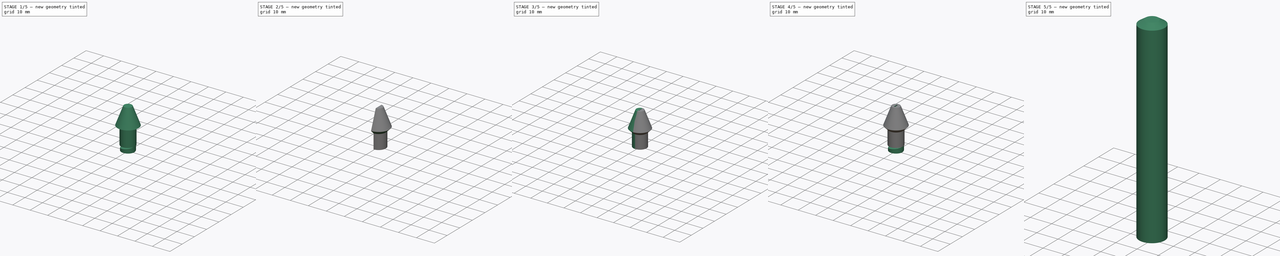
[diagram: build sequence overview — one tinted view per stage of 5, left to right]
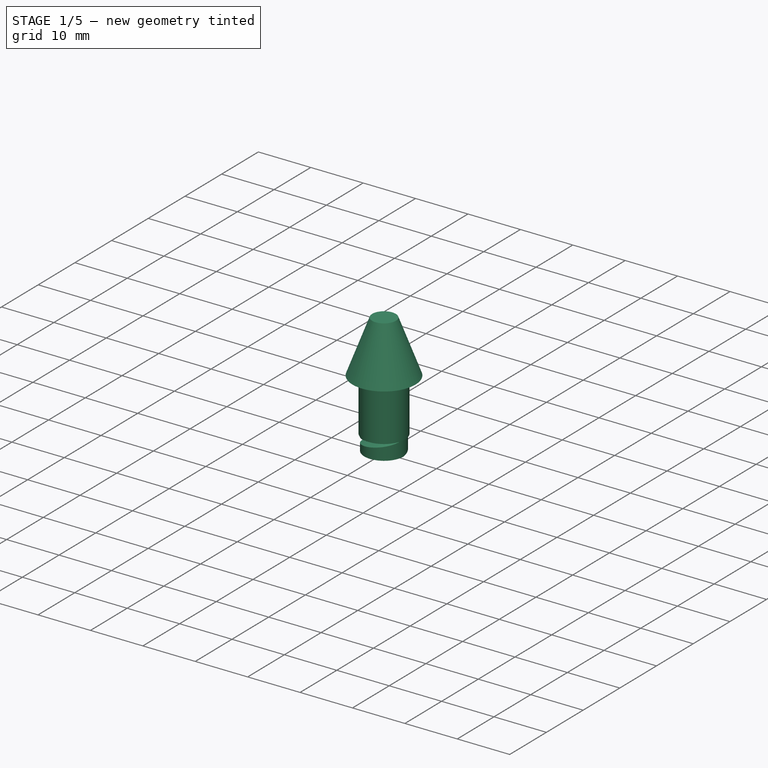
[diagram: stage 1 of 5 — iso view after this stage's code; geometry added in this stage tinted green]
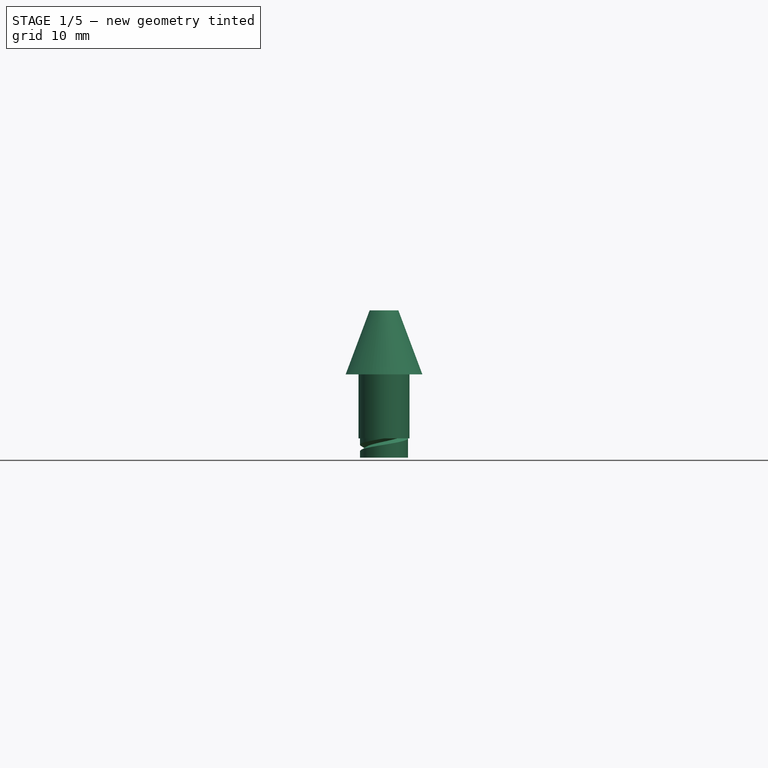
[diagram: stage 1 of 5 — front view after this stage's code; geometry added in this stage tinted green]
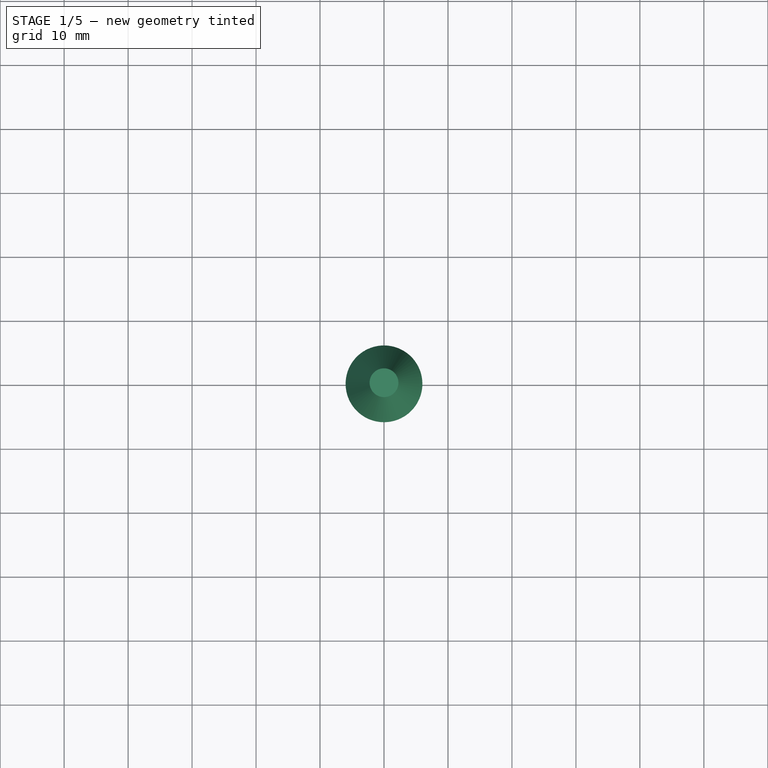
[diagram: stage 1 of 5 — top view after this stage's code; geometry added in this stage tinted green]
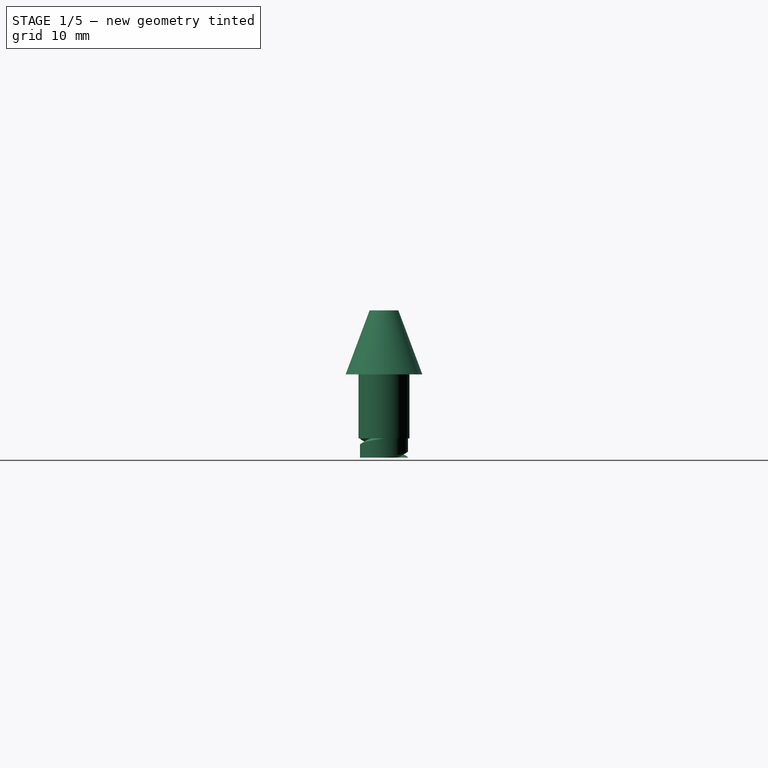
[diagram: stage 1 of 5 — right view after this stage's code; geometry added in this stage tinted green]
FCSTD DOCUMENT  (FreeCAD 2023.131R26244 +5365 (Git))
Label: Lockpick Holder
License: All rights reserved
LicenseURL: http://en.wikipedia.org/wiki/All_rights_reserved
objects: Sketcher::SketchObject×7, PartDesign::Body×5, Part::FeaturePython×4, PartDesign::Pad×3, PartDesign::AdditiveCone×3, PartDesign::FeatureBase×3, Part::Plane×2, PartDesign::Pocket×2, Spreadsheet::Sheet×1, PartDesign::AdditiveHelix×1, PartDesign::SubtractiveHelix×1, PartDesign::SubtractiveCone×1, App::DocumentObjectGroup×1, Part::SubShapeBinder×1
note: 65 computed .brp shape members not serialized (recipe doc carries the construction recipe); baked Part::Feature solids carry a one-line shape summary decoded from their .brp

FEATURE [Sketcher::SketchObject] Sketch002
  ArcFitTolerance = 1e-06
  AttachmentSupport = -> [XY_Plane001]
  ExternalBSplineMaxDegree = 5
  ExternalBSplineTolerance = 0.0001
  FullyConstrained = true
  InternalTolerance = 1e-06
  InvalidShape = false
  MakeInternals = false
  MapMode = 2
  Support = -> [XY_Plane001]
  TreeRank = 36
  ValidateShape = true
  expr: Constraints[1] = <<Parameters>>.Shaft_Diameter - 2 * <<Parameters>>.Shaft_Wall_Thickness - <<Parameters>>.Thread_Width / 2
  sketch-geometry (1):
    g0: Circle CenterX=0 CenterY=0 CenterZ=0 NormalX=0 NormalY=0 NormalZ=1 AngleXU=0 Radius=3.75
  constraints (2):
    c: Coincident(g0,g-1)
    c: Diameter(g0) = 7.5
FEATURE [PartDesign::Pad] Pad001  label="Thread Base"
  AddSubType = 0
  AlongSketchNormal = false
  AutoTaperInnerAngle = true
  CheckUpToFaceLimits = true
  ClaimChildren = false
  Direction = (0,0,1)
  Fit = 0
  FitJoin = 0
  InnerFit = 0
  InnerFitJoin = 0
  InvalidShape = false
  Length = 3
  Length2 = 100
  Linearize = true
  NewSolid = false
  Profile = -> Sketch002
  Suppress = false
  TaperInnerAngle = 0
  TaperInnerAngleRev = 0
  TreeRank = 37
  Type = 0
  ValidateShape = true
  _ProfileBasedVersion = 1
  expr: Length = <<Parameters>>.Thread_Height / 2
FEATURE [Sketcher::SketchObject] Sketch003
  ArcFitTolerance = 1e-06
  AttachmentSupport = -> [Pad001]
  ExternalBSplineMaxDegree = 5
  ExternalBSplineTolerance = 0.0001
  FullyConstrained = true
  InternalTolerance = 1e-06
  InvalidShape = false
  MakeInternals = false
  MapMode = 5
  Placement = pos=(0,0,3) rot=(0,0,1;0rad)
  Support = -> [Pad001]
  TreeRank = 38
  ValidateShape = true
  expr: Constraints[1] = <<Parameters>>.Shaft_Diameter - 2 * <<Parameters>>.Shaft_Wall_Thickness - 0.02
  sketch-geometry (1):
    g0: Circle CenterX=0 CenterY=0 CenterZ=0 NormalX=0 NormalY=0 NormalZ=1 AngleXU=0 Radius=3.99
  constraints (2):
    c: Coincident(g0,g-1)
    c: Diameter(g0) = 7.98
FEATURE [Sketcher::SketchObject] Sketch004
  ArcFitTolerance = 1e-06
  AttachmentSupport = -> [XZ_Plane001]
  ExternalBSplineMaxDegree = 5
  ExternalBSplineTolerance = 0.0001
  FullyConstrained = true
  InternalTolerance = 1e-06
  InvalidShape = false
  MakeInternals = false
  MapMode = 5
  Placement = pos=(0,0,0) rot=(1,0,0;1.5708rad)
  Support = -> [XZ_Plane001]
  TreeRank = 41
  ValidateShape = true
  expr: Constraints[6] = <<Parameters>>.Thread_Width
  expr: Constraints[8] = <<Parameters>>.Shaft_Diameter / 2 - <<Parameters>>.Shaft_Wall_Thickness - <<Parameters>>.Thread_Width / 4 + 0.01
  sketch-geometry (3):
    g0: LineSegment StartX=3.76 StartY=-1 StartZ=0 EndX=3.76 EndY=0 EndZ=0
    g1: LineSegment StartX=3.76 StartY=-1 StartZ=0 EndX=2.89397 EndY=-0.5 EndZ=0
    g2: LineSegment StartX=2.89397 StartY=-0.5 StartZ=0 EndX=3.76 EndY=0 EndZ=0
  constraints (9):
    c: Vertical(g0)
    c: Coincident(g1,g0)
    c: Coincident(g2,g1)
    c: Coincident(g2,g0)
    c: Equal(g1,g2)
    c: Equal(g1,g0)
    c: Distance(g0,g0) = 1
    c: PointOnObject(g0,g-1)
    c: DistanceX(g-1,g0) = 3.76
FEATURE [PartDesign::SubtractiveHelix] Helix001  label="Threads"
  AddSubType = 1
  Angle = 0
  Axis = (0,0,1)
  Base = (0,0,0)
  BaseFeature = -> Pad001
  ClaimChildren = false
  Fit = 0
  FitJoin = 0
  Growth = 0
  HasBeenEdited = true
  Height = 6
  InnerFit = 0
  InnerFitJoin = 0
  InvalidShape = false
  LeftHanded = false
  Linearize = true
  Mode = 0
  NewSolid = false
  Outside = false
  Pitch = 4
  Profile = -> Sketch004
  ReferenceAxis = -> Sketch004 [V_Axis]
  Suppress = false
  TreeRank = 42
  Turns = 1.5
  ValidateShape = true
  _ProfileBasedVersion = 1
  expr: Height = <<Parameters>>.Thread_Height
  expr: Pitch = <<Parameters>>.Thread_Pitch
FEATURE [PartDesign::Pad] Pad002  label="Shoulder"
  AddSubType = 0
  AlongSketchNormal = false
  AutoTaperInnerAngle = true
  BaseFeature = -> Helix001
  CheckUpToFaceLimits = true
  ClaimChildren = false
  Direction = (0,0,1)
  Fit = 0
  FitJoin = 0
  InnerFit = 0
  InnerFitJoin = 0
  InvalidShape = false
  Length = 10
  Length2 = 100
  Linearize = true
  NewSolid = false
  Profile = -> Sketch003
  Suppress = false
  TaperInnerAngle = 0
  TaperInnerAngleRev = 0
  TreeRank = 39
  Type = 0
  ValidateShape = true
  _ProfileBasedVersion = 1
  expr: Length = <<Parameters>>.Clamp_Shoulder_Height
FEATURE [PartDesign::AdditiveCone] Cone001  label="Top Cone"
  AddSubType = 0
  Angle = 360
  AttacherType = Attacher::AttachEngine3D
  AttachmentSupport = -> [Pad002]
  BaseFeature = -> Pad002
  Height = 10
  InvalidShape = false
  MapMode = 5
  NewSolid = false
  Placement = pos=(0,0,13) rot=(0,0,1;0rad)
  Radius1 = 6
  Radius2 = 2.25
  Support = -> [Pad002]
  Suppress = false
  TreeRank = 40
  ValidateShape = true
  expr: Radius1 = <<Parameters>>.Shaft_Diameter / 2
  expr: Radius2 = <<Parameters>>.Insert_Width / 2 + 1
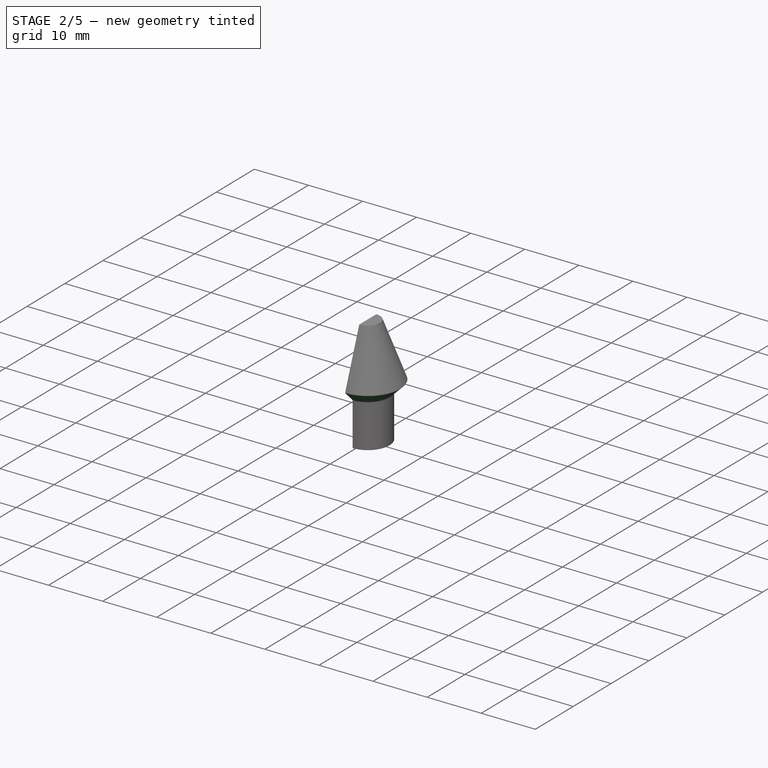
[diagram: stage 2 of 5 — iso view after this stage's code; geometry added in this stage tinted green]
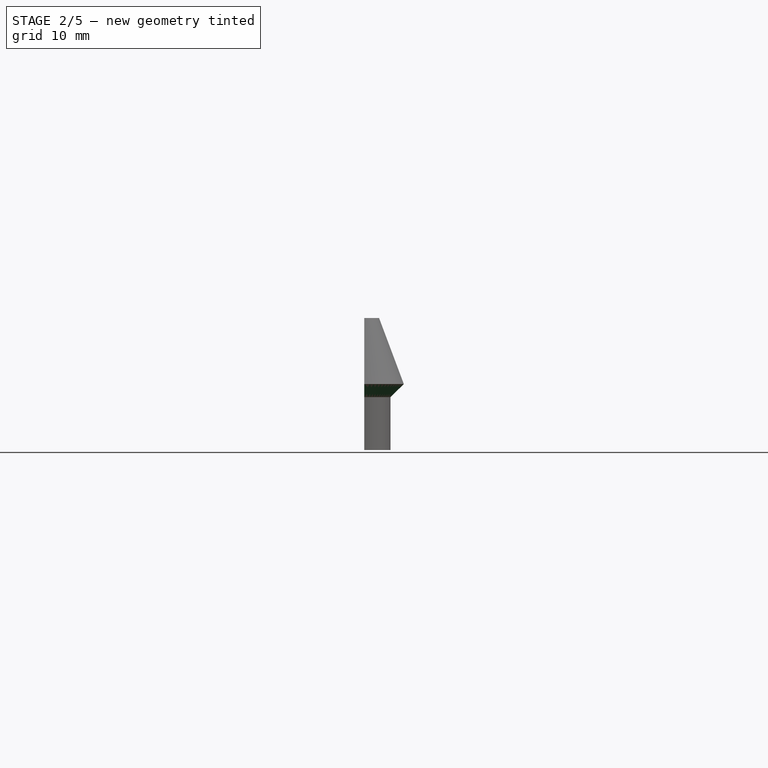
[diagram: stage 2 of 5 — front view after this stage's code; geometry added in this stage tinted green]
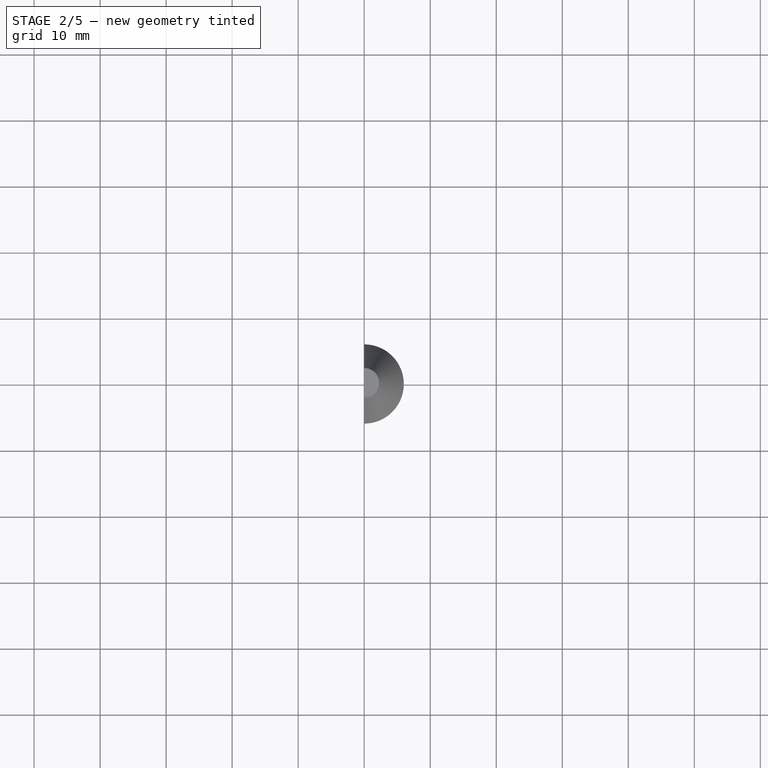
[diagram: stage 2 of 5 — top view after this stage's code; geometry added in this stage tinted green]
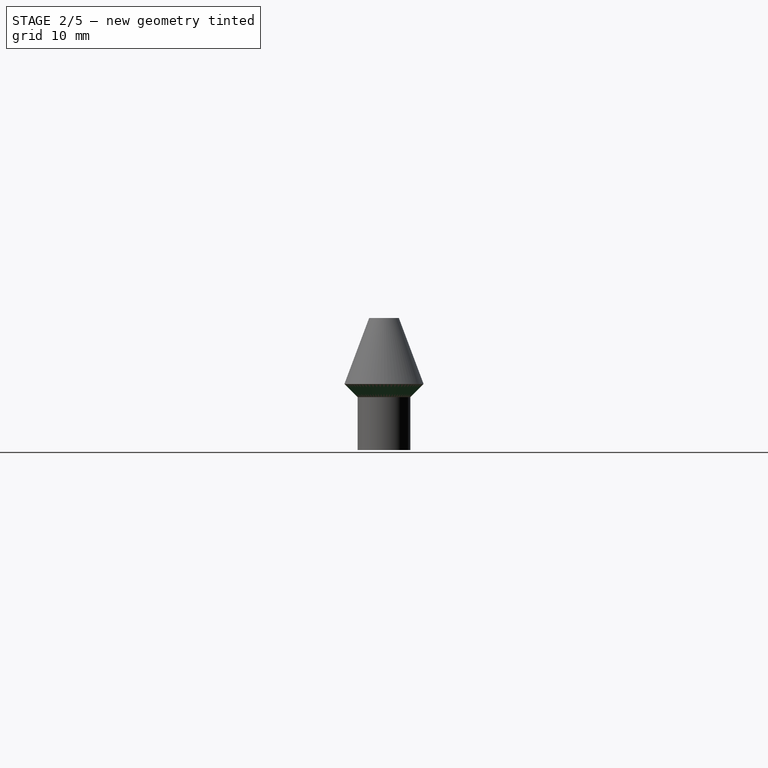
[diagram: stage 2 of 5 — right view after this stage's code; geometry added in this stage tinted green]
FEATURE [PartDesign::AdditiveCone] Cone002  label="Shoulder Cone"
  AddSubType = 0
  Angle = 360
  AttacherType = Attacher::AttachEngine3D
  AttachmentSupport = -> [Cone001]
  BaseFeature = -> Cone001
  Height = 2
  InvalidShape = false
  MapMode = 11
  NewSolid = false
  Placement = pos=(0,0,13) rot=(0.707107,-0.707107,0;3.14159rad)
  Radius1 = 6
  Radius2 = 3.975
  Support = -> [Cone001]
  Suppress = false
  TreeRank = 43
  ValidateShape = true
  expr: Radius1 = <<Parameters>>.Shaft_Diameter / 2
  expr: Radius2 = (<<Parameters>>.Shaft_Diameter - 2 * <<Parameters>>.Shaft_Wall_Thickness - 0.05) / 2
FEATURE [PartDesign::Body] Body  label="Shaft"
  AutoGroupSolids = false
  ClaimAllChildren = false
  ExportMode = 0
  Group = -> [Sketch,Pad,Sketch001,Helix,Cone,Cone003]
  InvalidShape = false
  Origin = -> Origin
  Tip = -> Cone003
  TreeRank = 20
  ValidateShape = true
  _ExportChildren = -> [Pad,Helix,Cone,Cone003]
  _GroupVersion = 1
FEATURE [Part::Plane] Plane  label="Horizontal Slice Plane"
  AttacherType = Attacher::AttachEngine3D
  InvalidShape = false
  Length = 20
  Placement = pos=(-10,-10,3) rot=(0,0,1;0rad)
  TreeRank = 47
  ValidateShape = true
  Width = 20
  expr: Placement.Base.z = <<Parameters>>.Thread_Height / 2
FEATURE [Part::Plane] Plane001  label="Vertical Slice Plane"
  AttacherType = Attacher::AttachEngine3D
  InvalidShape = false
  Length = 20
  Placement = pos=(0,-10,23) rot=(0,1,0;1.5708rad)
  TreeRank = 46
  ValidateShape = true
  Width = 20
  expr: Placement.Base.z = <<Parameters>>.Thread_Height / 2 + 20
FEATURE [Part::FeaturePython] Slice  # WARN: FeaturePython — macro-defined, semantics opaque (R4)
  Base = -> Body001
  InvalidShape = false
  Mode = 1
  Tolerance = 0
  Tools = -> [Plane,Plane001]
  TreeRank = 49
  ValidateShape = true
FEATURE [Part::FeaturePython] Slice_child1  label="Right Slice"  # WARN: FeaturePython — macro-defined, semantics opaque (R4)
  Base = -> Slice
  FilterType = 1
  InvalidShape = false
  Invert = false
  OverrideMaxVal = 0
  TreeRank = 52
  ValidateShape = true
  WindowFrom = 80
  WindowTo = 100
  items = 1
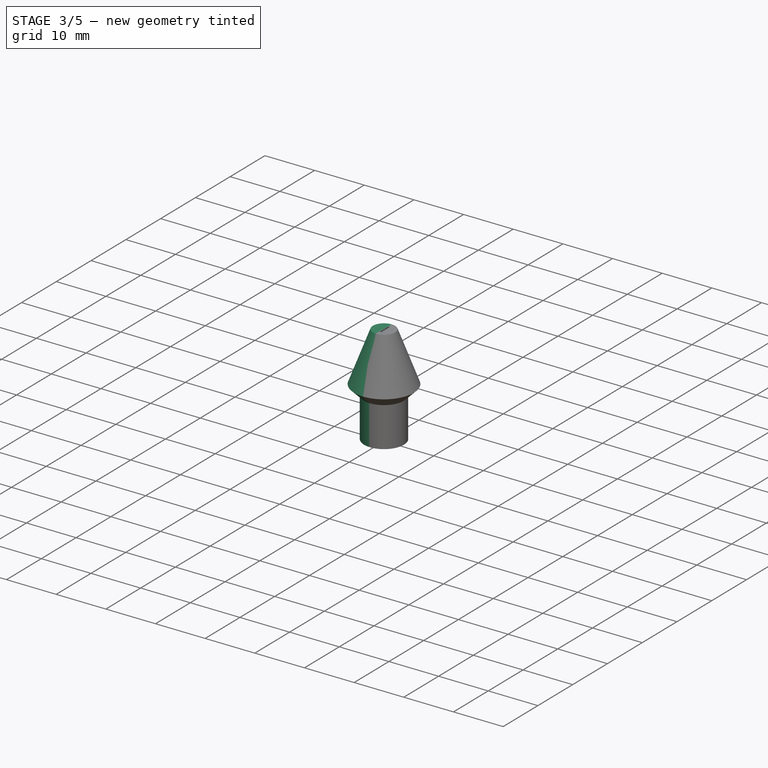
[diagram: stage 3 of 5 — iso view after this stage's code; geometry added in this stage tinted green]
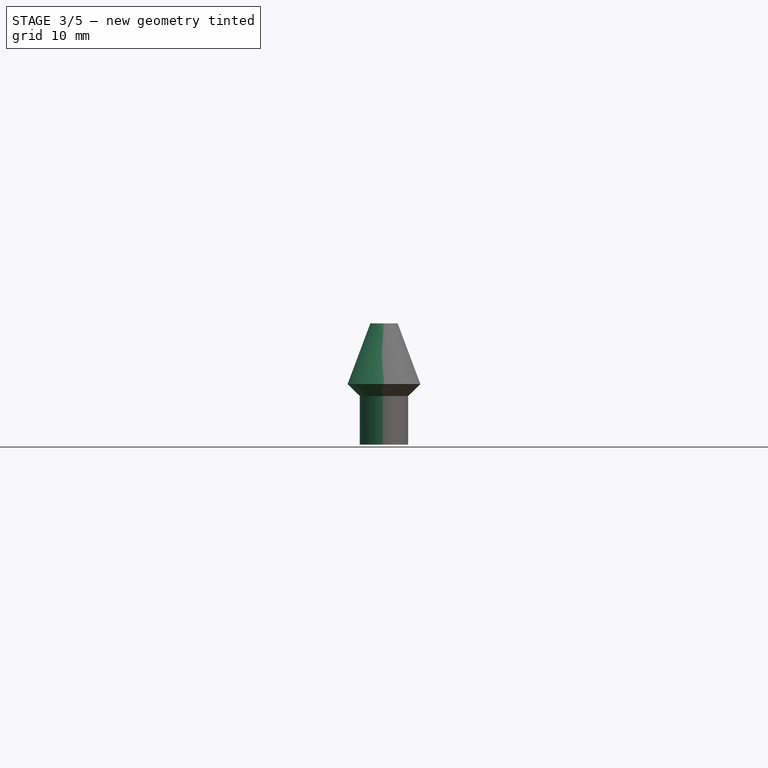
[diagram: stage 3 of 5 — front view after this stage's code; geometry added in this stage tinted green]
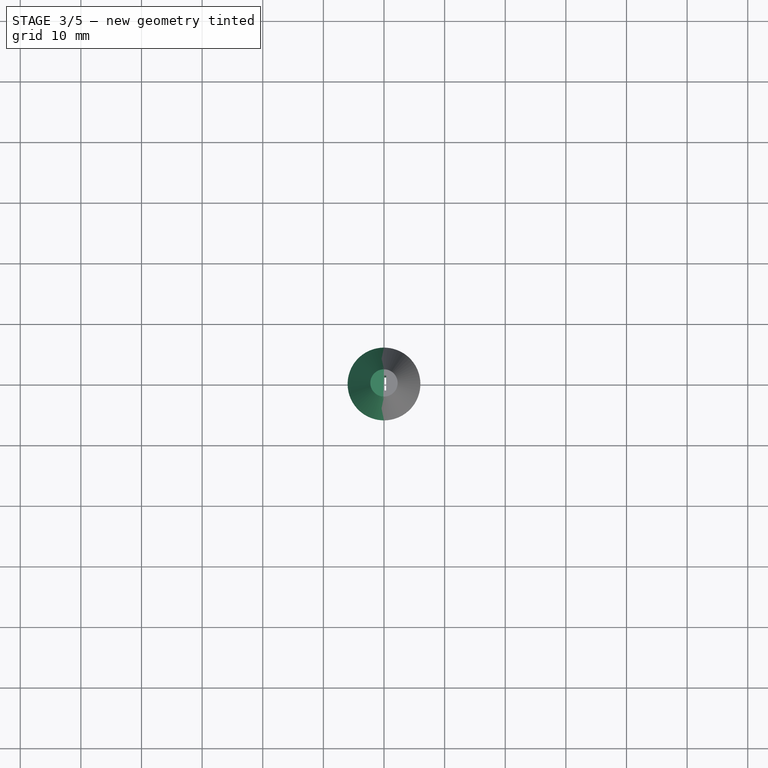
[diagram: stage 3 of 5 — top view after this stage's code; geometry added in this stage tinted green]
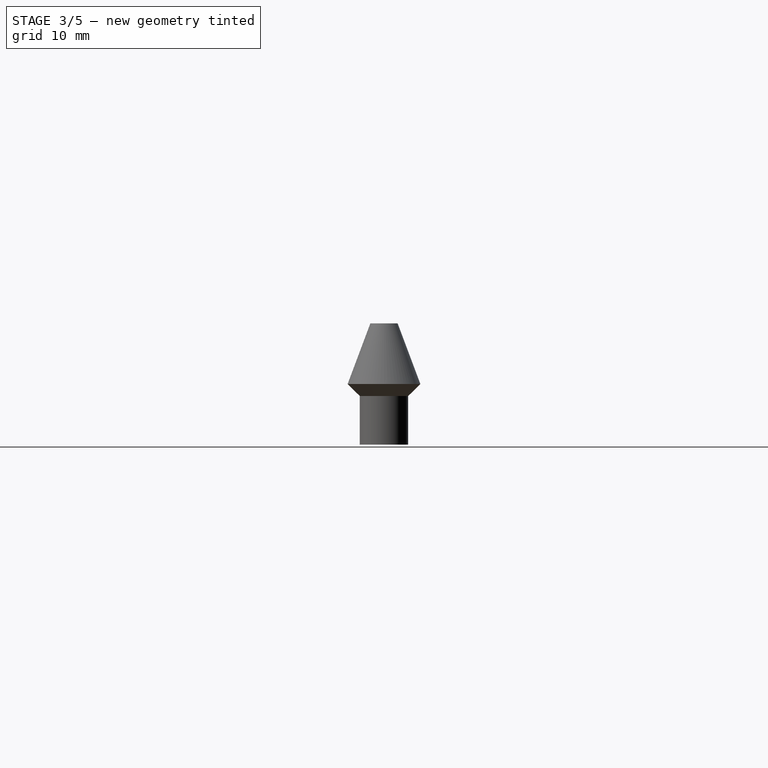
[diagram: stage 3 of 5 — right view after this stage's code; geometry added in this stage tinted green]
FEATURE [Part::FeaturePython] Slice_child2  label="Left Slice"  # WARN: FeaturePython — macro-defined, semantics opaque (R4)
  Base = -> Slice
  FilterType = 1
  InvalidShape = false
  Invert = false
  OverrideMaxVal = 0
  TreeRank = 53
  ValidateShape = true
  WindowFrom = 80
  WindowTo = 100
  items = 2
FEATURE [PartDesign::Body] Body002  label="Camp Threads"
  AutoGroupSolids = false
  BaseFeature = -> Slice_child0
  ClaimAllChildren = false
  ExportMode = 0
  Group = -> [BaseFeature]
  InvalidShape = false
  Origin = -> Origin002
  Tip = -> BaseFeature
  TreeRank = 65
  ValidateShape = true
  _ExportChildren = -> [BaseFeature]
  _GroupVersion = 1
FEATURE [PartDesign::FeatureBase] BaseFeature001
  BaseFeature = -> Slice_child1
  InvalidShape = false
  NewSolid = false
  Suppress = false
  TreeRank = 75
  ValidateShape = true
FEATURE [PartDesign::FeatureBase] BaseFeature002
  BaseFeature = -> Slice_child2
  InvalidShape = false
  NewSolid = false
  Suppress = false
  TreeRank = 86
  ValidateShape = true
FEATURE [Part::SubShapeBinder] Import  label="Import(BaseFeature001)"
  BindCopyOnChange = 0
  BindMode = 0
  ClaimChildren = false
  Context = -> Body004 [Import.]
  EdgeTolerance = 1e-06
  FillStyle = 0
  Fuse = false
  InvalidShape = false
  MakeFace = false
  MergeEdges = true
  OffsetFill = false
  OffsetIntersection = false
  OffsetJoinType = 0
  OffsetOpenResult = false
  Outline = false
  PartialLoad = false
  Relative = true
  SplitEdges = false
  Support = -> [Body003[BaseFeature001.]]
  TightBound = false
  TreeRank = 90
  ValidateShape = true
  _Version = 8
FEATURE [PartDesign::Body] Body004  label="Clamp Left"
  AutoGroupSolids = false
  BaseFeature = -> Slice_child2
  ClaimAllChildren = false
  ExportMode = 0
  Group = -> [BaseFeature002,Sketch005,Pocket,Import]
  InvalidShape = false
  Origin = -> Origin004
  Placement = pos=(0,0,0) rot=(0,1,0;-0.008727rad)
  Tip = -> Pocket
  TreeRank = 87
  ValidateShape = true
  _ExportChildren = -> [BaseFeature002,Pocket,Import]
  _GroupVersion = 1
  expr: Placement.Rotation.Angle = -<<Parameters>>.Clamp_Half_Rotation
FEATURE [Sketcher::SketchObject] Sketch006
  ArcFitTolerance = 1e-06
  AttachmentSupport = -> [BaseFeature001]
  ExternalBSplineMaxDegree = 5
  ExternalBSplineTolerance = 0.0001
  FullyConstrained = true
  InternalTolerance = 1e-06
  InvalidShape = false
  MakeInternals = false
  MapMode = 5
  Placement = pos=(-2e-15,-2e-15,23) rot=(0,0,1;0rad)
  Support = -> [BaseFeature001]
  TreeRank = 91
  ValidateShape = true
  expr: Constraints[10] = <<Parameters>>.Insert_Width / 2
  expr: Constraints[11] = <<Parameters>>.Insert_Thickness / 2
  expr: Constraints[9] = <<Parameters>>.Insert_Width
  sketch-geometry (4):
    g0: LineSegment StartX=0 StartY=1.25 StartZ=0 EndX=0.35 EndY=1.25 EndZ=0
    g1: LineSegment StartX=0.35 StartY=1.25 StartZ=0 EndX=0.35 EndY=-1.25 EndZ=0
    g2: LineSegment StartX=0.35 StartY=-1.25 StartZ=0 EndX=0 EndY=-1.25 EndZ=0
    g3: LineSegment StartX=0 StartY=-1.25 StartZ=0 EndX=0 EndY=1.25 EndZ=0
  constraints (12):
    c: Coincident(g0,g1)
    c: Coincident(g1,g2)
    c: Coincident(g2,g3)
    c: Coincident(g3,g0)
    c: Horizontal(g0)
    c: Horizontal(g2)
    c: Vertical(g1)
    c: Vertical(g3)
    c: PointOnObject(g0,g-2)
    c: Distance(g0,g1) = 2.5
    c: DistanceY(g-1,g0) = 1.25
    c: DistanceX(g-1,g0) = 0.35
FEATURE [PartDesign::Pocket] Pocket001
  AddSubType = 1
  AutoTaperInnerAngle = true
  BaseFeature = -> BaseFeature001
  CheckUpToFaceLimits = true
  ClaimChildren = false
  Fit = 0
  FitJoin = 0
  InnerFit = 0
  InnerFitJoin = 0
  InvalidShape = false
  Length = 20
  Length2 = 100
  Linearize = true
  NewSolid = false
  Profile = -> Sketch006
  Suppress = false
  TaperInnerAngle = 0
  TaperInnerAngleRev = 0
  TreeRank = 92
  Type = 0
  ValidateShape = true
  _ProfileBasedVersion = 1
  _Version = 1
  expr: Length = <<Parameters>>.Insert_Base_Length + 5
FEATURE [PartDesign::Body] Body003  label="Clamp Right"
  AutoGroupSolids = false
  BaseFeature = -> Slice_child1
  ClaimAllChildren = false
  ExportMode = 0
  Group = -> [BaseFeature001,Sketch006,Pocket001]
  InvalidShape = false
  Origin = -> Origin003
  Placement = pos=(0,0,0) rot=(0,1,0;0.008727rad)
  Tip = -> Pocket001
  TreeRank = 76
  ValidateShape = true
  _ExportChildren = -> [BaseFeature001,Pocket001]
  _GroupVersion = 1
  expr: Placement.Rotation.Angle = <<Parameters>>.Clamp_Half_Rotation
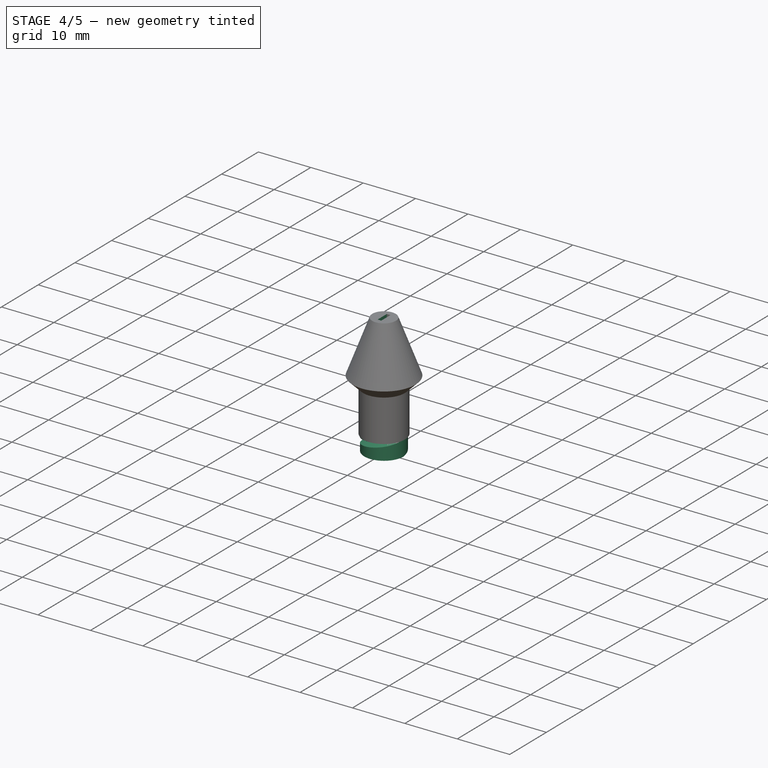
[diagram: stage 4 of 5 — iso view after this stage's code; geometry added in this stage tinted green]
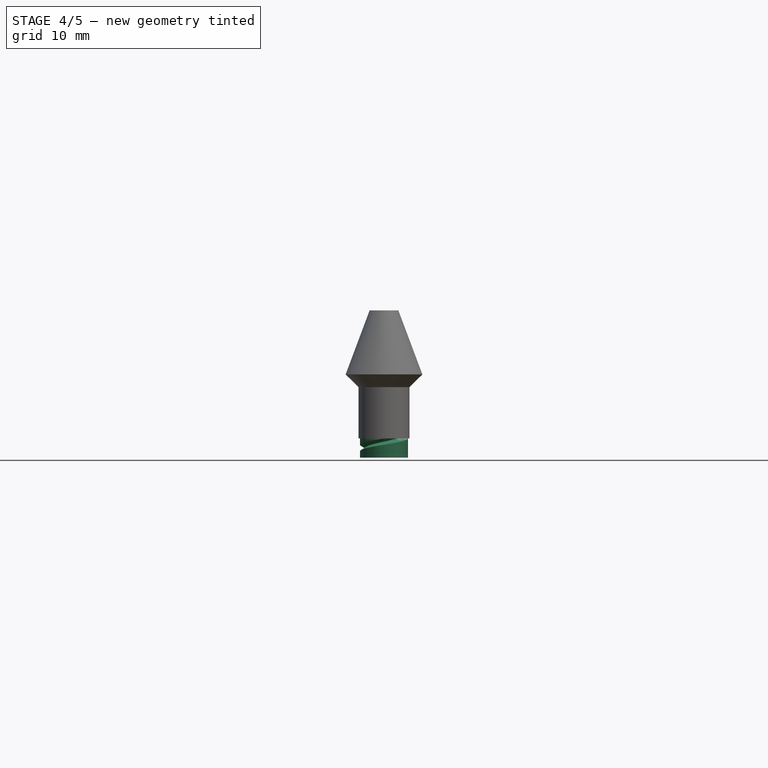
[diagram: stage 4 of 5 — front view after this stage's code; geometry added in this stage tinted green]
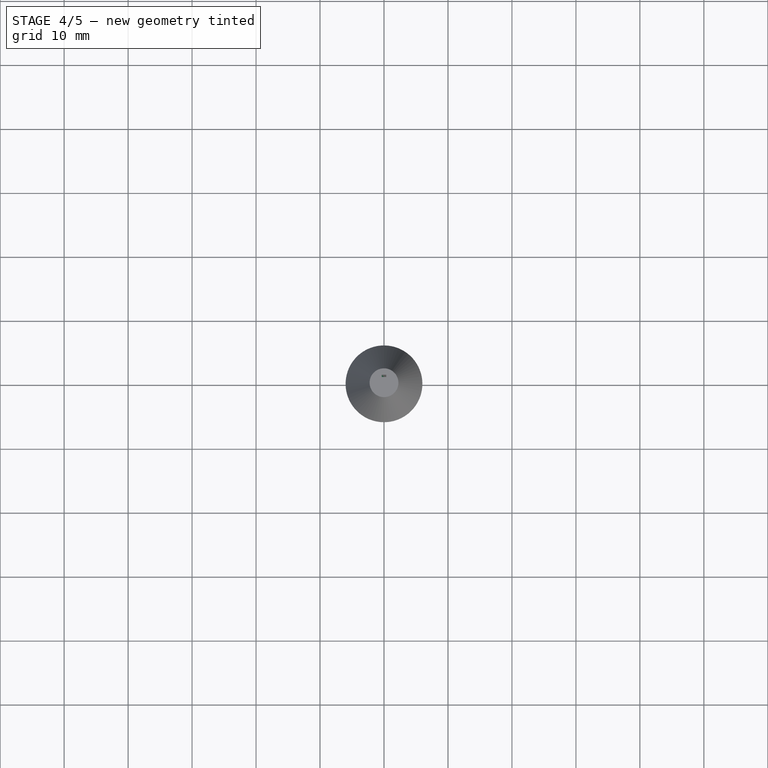
[diagram: stage 4 of 5 — top view after this stage's code; geometry added in this stage tinted green]
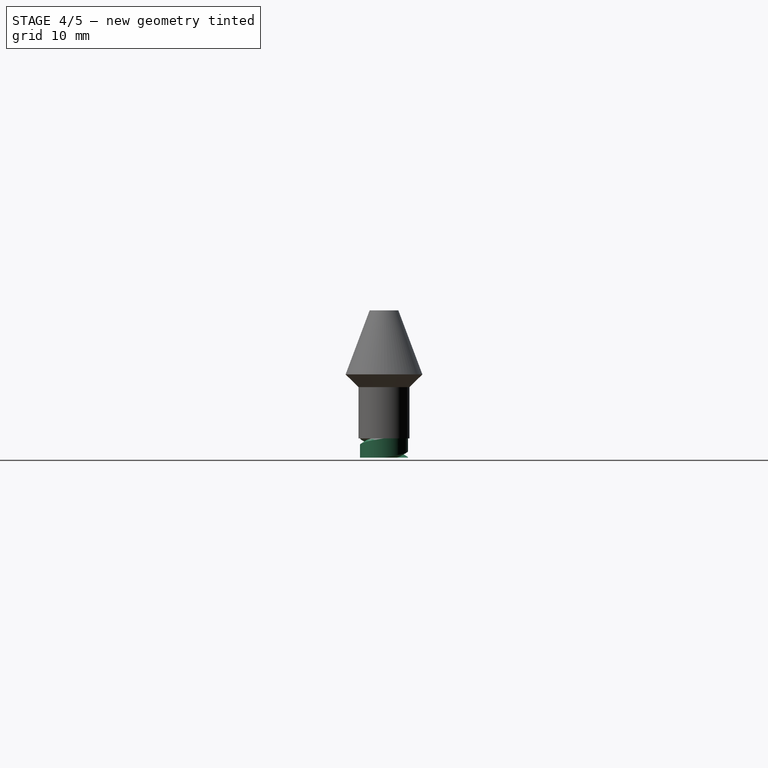
[diagram: stage 4 of 5 — right view after this stage's code; geometry added in this stage tinted green]
FEATURE [Part::FeaturePython] Slice_child0  label="Threads Slice"  # WARN: FeaturePython — macro-defined, semantics opaque (R4)
  Base = -> Slice
  FilterType = 1
  InvalidShape = false
  Invert = false
  OverrideMaxVal = 0
  TreeRank = 51
  ValidateShape = true
  WindowFrom = 80
  WindowTo = 100
  items = 0
FEATURE [App::DocumentObjectGroup] GrExplode_Slice  label="Exploded Slice"
  ClaimAllChildren = true
  ExportMode = 1
  Group = -> [Slice_child0,Slice_child1,Slice_child2]
  TreeRank = 54
  _GroupVersion = 1
FEATURE [PartDesign::FeatureBase] BaseFeature
  BaseFeature = -> Slice_child0
  InvalidShape = false
  NewSolid = false
  Suppress = false
  TreeRank = 64
  ValidateShape = true
FEATURE [Sketcher::SketchObject] Sketch005
  ArcFitTolerance = 1e-06
  AttachmentSupport = -> [BaseFeature002]
  ExternalBSplineMaxDegree = 5
  ExternalBSplineTolerance = 0.0001
  FullyConstrained = true
  InternalTolerance = 1e-06
  InvalidShape = false
  MakeInternals = false
  MapMode = 5
  Placement = pos=(-2e-15,-2e-15,23) rot=(0,0,1;0rad)
  Support = -> [BaseFeature002]
  TreeRank = 88
  ValidateShape = true
  expr: Constraints[10] = <<Parameters>>.Insert_Width / 2
  expr: Constraints[11] = <<Parameters>>.Insert_Width
  expr: Constraints[9] = <<Parameters>>.Insert_Thickness / 2
  sketch-geometry (4):
    g0: LineSegment StartX=0 StartY=1.25 StartZ=0 EndX=-0.35 EndY=1.25 EndZ=0
    g1: LineSegment StartX=-0.35 StartY=1.25 StartZ=0 EndX=-0.35 EndY=-1.25 EndZ=0
    g2: LineSegment StartX=-0.35 StartY=-1.25 StartZ=0 EndX=0 EndY=-1.25 EndZ=0
    g3: LineSegment StartX=0 StartY=-1.25 StartZ=0 EndX=0 EndY=1.25 EndZ=0
  constraints (12):
    c: Coincident(g0,g1)
    c: Coincident(g1,g2)
    c: Coincident(g2,g3)
    c: Coincident(g3,g0)
    c: Horizontal(g0)
    c: Horizontal(g2)
    c: Vertical(g1)
    c: Vertical(g3)
    c: PointOnObject(g0,g-2)
    c: DistanceX(g0,g-1) = 0.35
    c: DistanceY(g-1,g0) = 1.25
    c: Distance(g0,g2) = 2.5
FEATURE [PartDesign::Pocket] Pocket
  AddSubType = 1
  AutoTaperInnerAngle = true
  BaseFeature = -> BaseFeature002
  CheckUpToFaceLimits = true
  ClaimChildren = false
  Fit = 0
  FitJoin = 0
  InnerFit = 0
  InnerFitJoin = 0
  InvalidShape = false
  Length = 20
  Length2 = 100
  Linearize = true
  NewSolid = false
  Profile = -> Sketch005
  Suppress = false
  TaperInnerAngle = 0
  TaperInnerAngleRev = 0
  TreeRank = 89
  Type = 0
  ValidateShape = true
  _ProfileBasedVersion = 1
  _Version = 1
  expr: Length = <<Parameters>>.Insert_Base_Length + 5
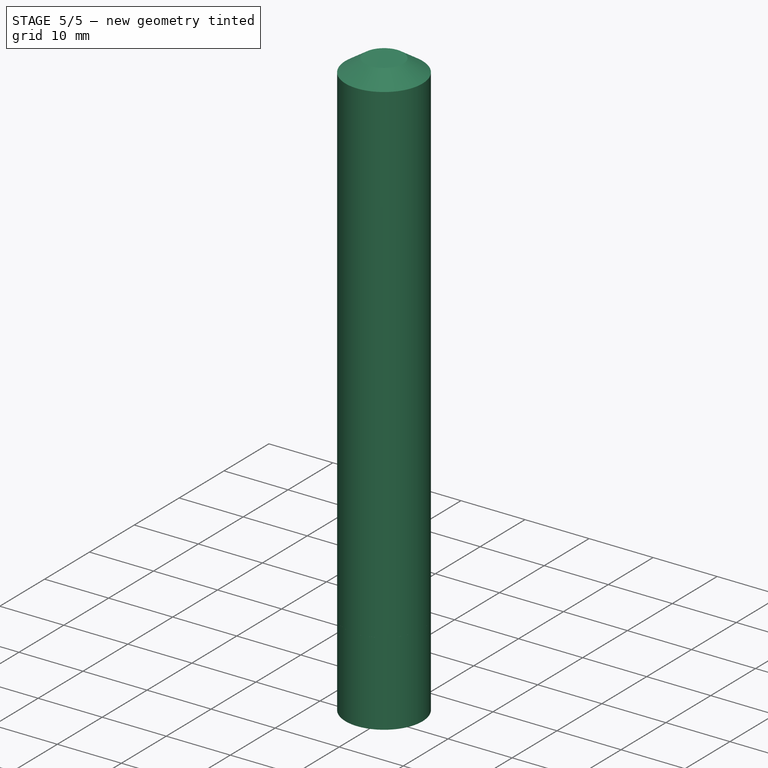
[diagram: stage 5 of 5 — iso view after this stage's code; geometry added in this stage tinted green]
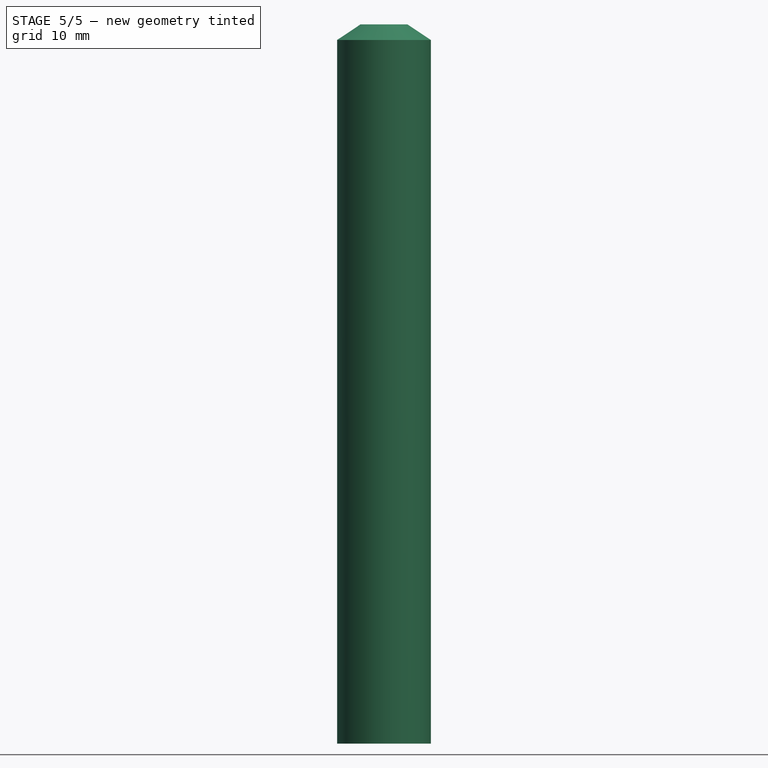
[diagram: stage 5 of 5 — front view after this stage's code; geometry added in this stage tinted green]
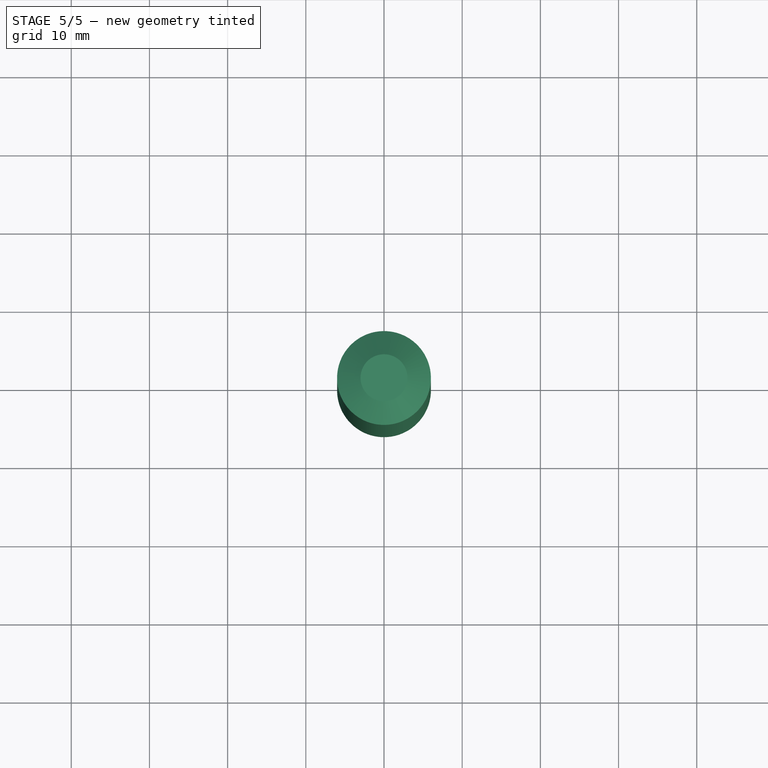
[diagram: stage 5 of 5 — top view after this stage's code; geometry added in this stage tinted green]
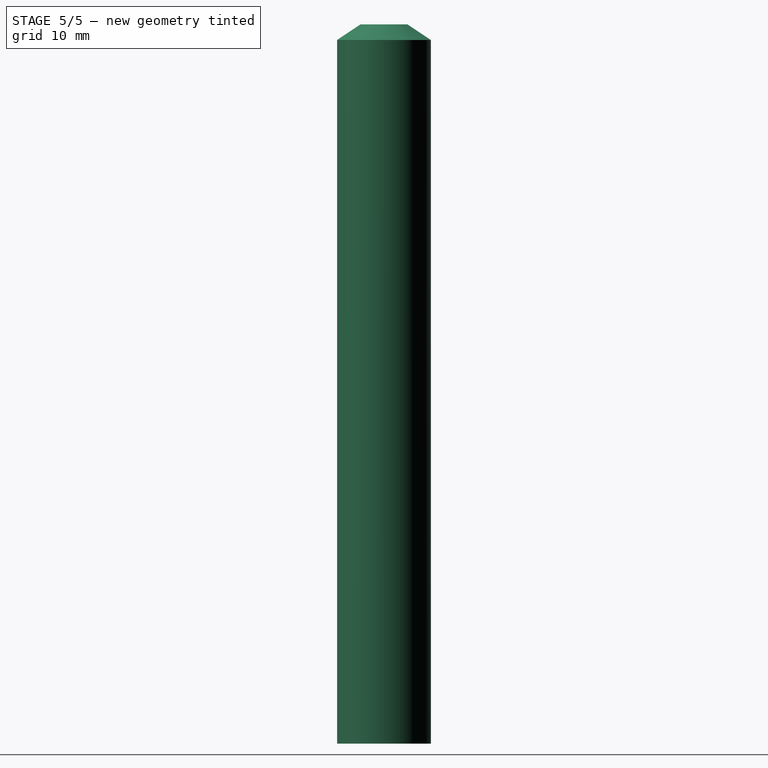
[diagram: stage 5 of 5 — right view after this stage's code; geometry added in this stage tinted green]
FEATURE [Spreadsheet::Sheet] Spreadsheet  label="Parameters"
  PythonMode = false
  ShowCells = 0
  TreeRank = 10
  cells = A2=Insert Thickness; B2(Insert_Thickness)=0.7; A3=Insert Width; B3(Insert_Width)=2.5; A4=Insert Base Length; B4(Insert_Base_Length)=15; A6=Shaft Outer Diameter; B6(Shaft_Diameter)=12; A7=Shaft Length; B7(Shaft_Length)=90; A8=Shaft Wall Thickness; B8(Shaft_Wall_Thickness)=2; A10=Thread Width; B10(Thread_Width)=1; A11=Thread Pitch; B11(Thread_Pitch)=4; A12=Thread Height; B12(Thread_Height)=6; A14=Clamp Shoulder Height; B14(Clamp_Shoulder_Height)=10; C14=The smoothe part of the clamp, above the threads. The shoulder should be longer than the threads.; A15=Clamp Half Rotation; B15(Clamp_Half_Rotation)=0.5
FEATURE [Sketcher::SketchObject] Sketch
  ArcFitTolerance = 1e-06
  AttachmentSupport = -> [XY_Plane]
  ExternalBSplineMaxDegree = 5
  ExternalBSplineTolerance = 0.0001
  FullyConstrained = true
  InternalTolerance = 1e-06
  InvalidShape = false
  MakeInternals = false
  MapMode = 5
  Support = -> [XY_Plane]
  TreeRank = 21
  ValidateShape = true
  expr: Constraints[1] = <<Parameters>>.Shaft_Diameter
  expr: Constraints[3] = <<Parameters>>.Shaft_Diameter - 2 * <<Parameters>>.Shaft_Wall_Thickness
  sketch-geometry (2):
    g0: Circle CenterX=0 CenterY=0 CenterZ=0 NormalX=0 NormalY=0 NormalZ=1 AngleXU=0 Radius=6
    g1: Circle CenterX=0 CenterY=0 CenterZ=0 NormalX=0 NormalY=0 NormalZ=1 AngleXU=0 Radius=4
  constraints (4):
    c: Coincident(g0,g-1)
    c: Diameter(g0) = 12
    c: Coincident(g1,g0)
    c: Diameter(g1) = 8
FEATURE [PartDesign::Pad] Pad  label="Shaft Body"
  AddSubType = 0
  AlongSketchNormal = false
  AutoTaperInnerAngle = true
  CheckUpToFaceLimits = true
  ClaimChildren = false
  Direction = (0,0,1)
  Fit = 0
  FitJoin = 0
  InnerFit = 0
  InnerFitJoin = 0
  InvalidShape = false
  Length = 90
  Length2 = 100
  Linearize = true
  NewSolid = false
  Profile = -> Sketch
  Suppress = false
  TaperInnerAngle = 0
  TaperInnerAngleRev = 0
  TreeRank = 22
  Type = 0
  ValidateShape = true
  _ProfileBasedVersion = 1
  expr: Length = <<Parameters>>.Shaft_Length
FEATURE [Sketcher::SketchObject] Sketch001
  ArcFitTolerance = 1e-06
  AttachmentSupport = -> [YZ_Plane]
  ExternalBSplineMaxDegree = 5
  ExternalBSplineTolerance = 0.0001
  FullyConstrained = true
  InternalTolerance = 1e-06
  InvalidShape = false
  MakeInternals = false
  MapMode = 5
  Placement = pos=(0,0,0) rot=(0.57735,0.57735,0.57735;2.0944rad)
  Support = -> [YZ_Plane]
  TreeRank = 23
  ValidateShape = true
  expr: Constraints[1] = Spreadsheet.Thread_Width
  expr: Constraints[2] = -(<<Parameters>>.Shaft_Diameter / 2 - <<Parameters>>.Shaft_Wall_Thickness) - 0.01
  expr: Constraints[8] = <<Parameters>>.Clamp_Shoulder_Height
  sketch-geometry (3):
    g0: LineSegment StartX=-4.01 StartY=10 StartZ=0 EndX=-4.01 EndY=11 EndZ=0
    g1: LineSegment StartX=-4.01 StartY=11 StartZ=0 EndX=-3.14397 EndY=10.5 EndZ=0
    g2: LineSegment StartX=-3.14397 StartY=10.5 StartZ=0 EndX=-4.01 EndY=10 EndZ=0
  constraints (9):
    c: Vertical(g0)
    c: Distance(g0,g0) = 1
    c: DistanceX(g-1,g0) = -4.01
    c: Coincident(g1,g0)
    c: Coincident(g2,g0)
    c: Equal(g1,g2)
    c: Coincident(g2,g1)
    c: Equal(g1,g0)
    c: DistanceY(g-1,g0) = 10
FEATURE [PartDesign::AdditiveHelix] Helix  label="Inner Threads"
  AddSubType = 0
  Angle = 0
  Axis = (-3e-16,3e-16,1)
  Base = (0,0,0)
  BaseFeature = -> Pad
  ClaimChildren = false
  Fit = 0
  FitJoin = 0
  Growth = 0
  HasBeenEdited = true
  Height = 6
  InnerFit = 0
  InnerFitJoin = 0
  InvalidShape = false
  LeftHanded = false
  Linearize = true
  Mode = 0
  NewSolid = false
  Outside = false
  Pitch = 4
  Profile = -> Sketch001
  ReferenceAxis = -> Sketch001 [V_Axis]
  Suppress = false
  TreeRank = 24
  Turns = 1.5
  ValidateShape = true
  _ProfileBasedVersion = 1
  expr: Height = <<Parameters>>.Thread_Height
  expr: Pitch = <<Parameters>>.Thread_Pitch
FEATURE [PartDesign::AdditiveCone] Cone  label="Shaft End"
  AddSubType = 0
  Angle = 360
  AttacherType = Attacher::AttachEngine3D
  AttachmentSupport = -> [Helix]
  BaseFeature = -> Helix
  Height = 2
  InvalidShape = false
  MapMode = 5
  NewSolid = false
  Placement = pos=(0,0,90) rot=(0,0,1;0rad)
  Radius1 = 6
  Radius2 = 3
  Support = -> [Helix]
  Suppress = false
  TreeRank = 25
  ValidateShape = true
  expr: Radius1 = <<Parameters>>.Shaft_Diameter / 2
  expr: Radius2 = <<Parameters>>.Shaft_Diameter / 4
FEATURE [PartDesign::Body] Body001  label="Clamp"
  AutoGroupSolids = false
  ClaimAllChildren = false
  ExportMode = 0
  Group = -> [Sketch002,Pad001,Sketch003,Helix001,Pad002,Cone001,Sketch004,Cone002]
  InvalidShape = false
  Origin = -> Origin001
  Tip = -> Cone002
  TreeRank = 48
  ValidateShape = true
  _ExportChildren = -> [Pad001,Helix001,Pad002,Cone001,Cone002]
  _GroupVersion = 1
FEATURE [PartDesign::SubtractiveCone] Cone003  label="Shoulder Reliefe"
  AddSubType = 1
  Angle = 360
  AttacherType = Attacher::AttachEngine3D
  AttachmentSupport = -> [Cone]
  BaseFeature = -> Cone
  Height = 2
  InvalidShape = false
  MapMode = 5
  NewSolid = false
  Placement = pos=(0,0,0) rot=(0,0,1;3.14159rad)
  Radius1 = 6
  Radius2 = 3.975
  Support = -> [Cone]
  Suppress = false
  TreeRank = 44
  ValidateShape = true
  expr: Radius1 = <<Parameters>>.Shaft_Diameter / 2
  expr: Radius2 = (<<Parameters>>.Shaft_Diameter - 2 * <<Parameters>>.Shaft_Wall_Thickness - 0.05) / 2
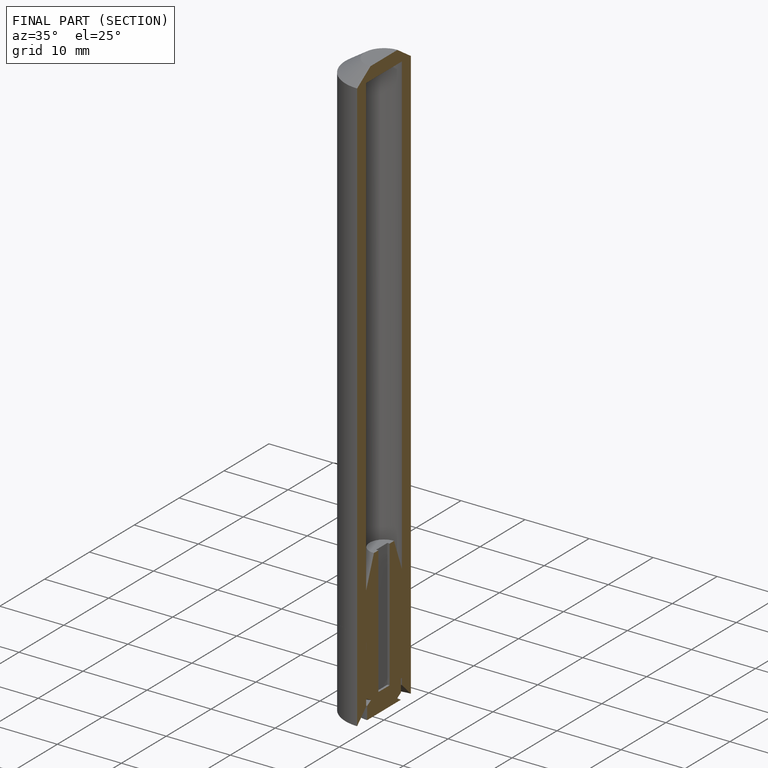
[diagram: finished part — half-section view (interior)]
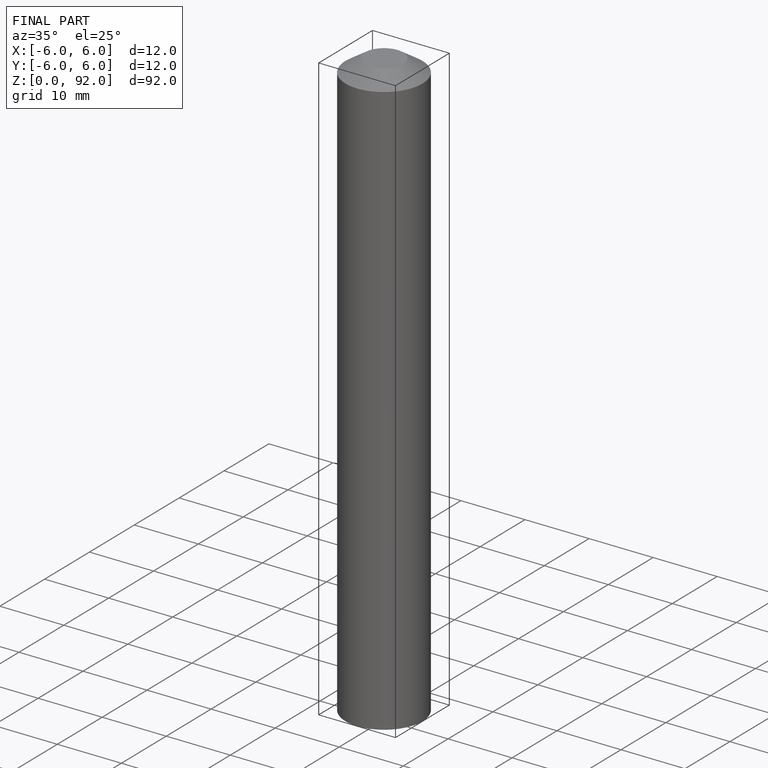
[diagram: finished part — iso view with bounding-box wireframe]
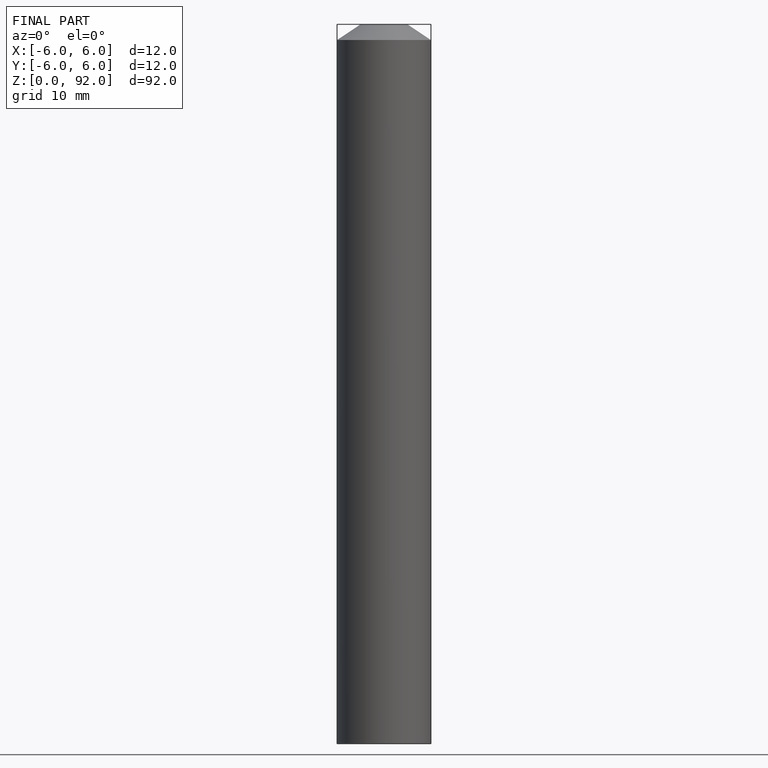
[diagram: finished part — front view with bounding-box wireframe]
